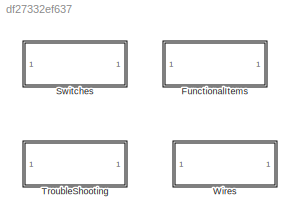
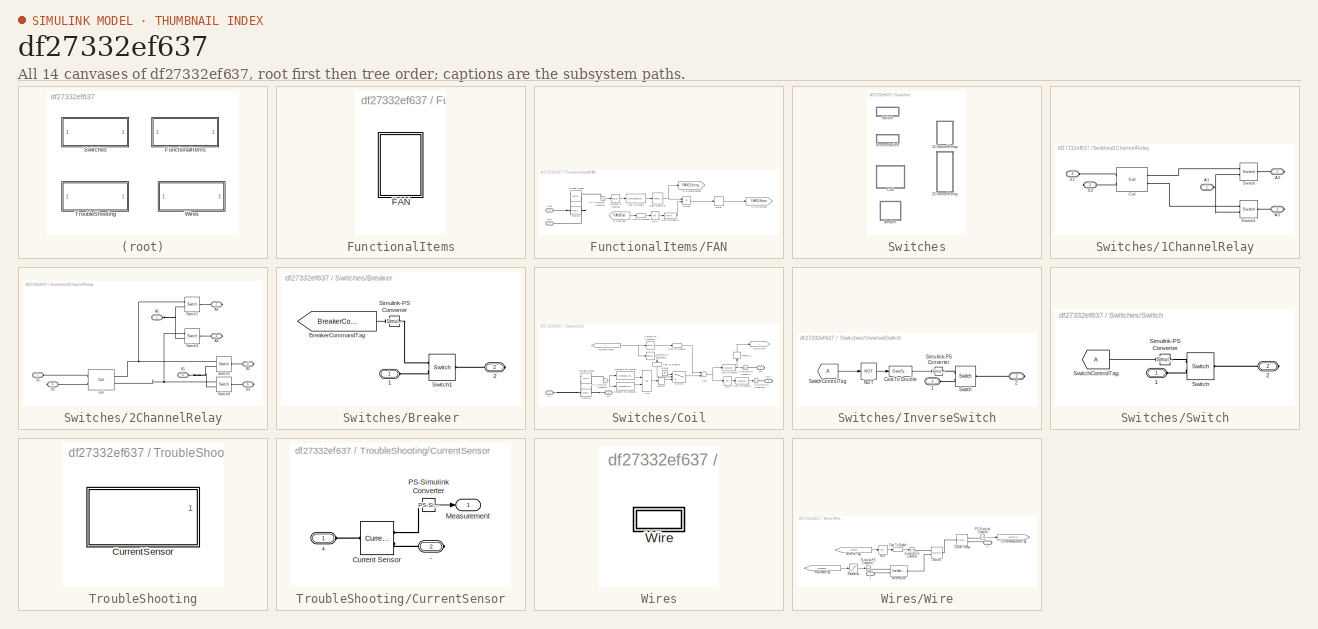
[diagram: thumbnail index - all 14 canvases of the model, root first then tree order]
MODEL slx_df27332ef637
KIND library
CONFIG AbsTol = auto
CONFIG EnableMultiTasking = off
CONFIG FixedStep = auto
CONFIG MaxStep = auto
CONFIG MinStep = auto
CONFIG RelTol = 1e-3
CONFIG SampleTimeConstraint = Unconstrained
CONFIG Solver = VariableStepAuto
CONFIG SolverName = VariableStepAuto
CONFIG StartTime = 0.0
CONFIG StopTime = 10.0
BLOCK [SubSystem] FunctionalItems
  Ports = []
  RequestExecContextInheritance = off
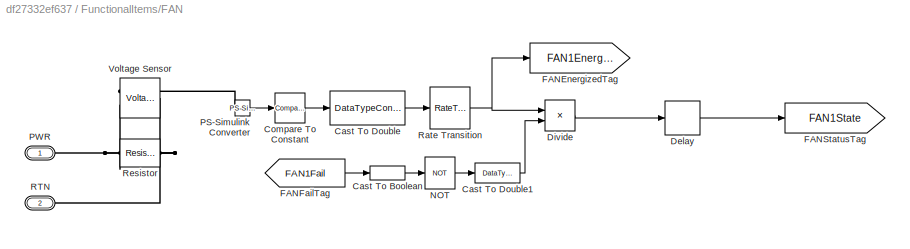
BLOCK [SubSystem] FunctionalItems/FAN
  AttributesFormatString = FAN%<FANNumber>
  Ports = [0, 0, 0, 0, 0, 2]
  RequestExecContextInheritance = off
BLOCK [DataTypeConversion] FunctionalItems/FAN/Cast To Boolean
  OutDataTypeStr = boolean
  RndMeth = Floor
  SaturateOnIntegerOverflow = off
BLOCK [DataTypeConversion] FunctionalItems/FAN/Cast To Double
  OutDataTypeStr = double
  RndMeth = Floor
  SaturateOnIntegerOverflow = off
BLOCK [DataTypeConversion] FunctionalItems/FAN/Cast To Double1
  OutDataTypeStr = double
  RndMeth = Floor
  SaturateOnIntegerOverflow = off
BLOCK [Reference] FunctionalItems/FAN/Compare To Constant  REF=simulink/Logic and Bit
Operations/Compare
To Constant
  Ports = [1, 1]
  SourceBlock = simulink/Logic and Bit\nOperations/Compare\nTo Constant
  SourceProductBaseCode = SL
  SourceProductName = Simulink
  SourceType = Compare To Constant
BLOCK [Delay] FunctionalItems/FAN/Delay
  DelayLength = 1
  InitialCondition = 0
  InputPortMap = u0
  Ports = [1, 1]
BLOCK [Product] FunctionalItems/FAN/Divide
  InputSameDT = off
  Inputs = **
  OutDataTypeStr = Inherit: Inherit via internal rule
  Ports = [2, 1]
  RndMeth = Floor
  SaturateOnIntegerOverflow = off
BLOCK [Goto] FunctionalItems/FAN/FANEnergizedTag
  GotoTag = FAN1Energized
  TagVisibility = global
BLOCK [From] FunctionalItems/FAN/FANFailTag
  GotoTag = FAN1Fail
BLOCK [Goto] FunctionalItems/FAN/FANStatusTag
  GotoTag = FAN1State
  TagVisibility = global
BLOCK [Logic] FunctionalItems/FAN/NOT
  AllPortsSameDT = off
  IconShape = distinctive
  Operator = NOT
  OutDataTypeStr = boolean
  Ports = [1, 1]
BLOCK [Reference] FunctionalItems/FAN/PS-Simulink Converter  REF=nesl_utility/PS-Simulink
Converter
  Ports = [0, 1, 0, 0, 0, 1]
  SourceBlock = nesl_utility/PS-Simulink\nConverter
  SourceProductBaseCode = SS
  SourceProductName = Simscape
  SourceType = PS-Simulink\nConverter
BLOCK [PMIOPort] FunctionalItems/FAN/PWR
  Side = Left
BLOCK [PMIOPort] FunctionalItems/FAN/RTN
  Port = 2
  Side = Left
BLOCK [RateTransition] FunctionalItems/FAN/Rate Transition
BLOCK [Reference] FunctionalItems/FAN/Resistor  REF=fl_lib/Electrical/Electrical Elements/Resistor
  Ports = [0, 0, 0, 0, 0, 1, 1]
  SourceBlock = fl_lib/Electrical/Electrical Elements/Resistor
  SourceProductBaseCode = SS
  SourceProductName = Simscape
  SourceType = Resistor
BLOCK [Reference] FunctionalItems/FAN/Voltage Sensor  REF=fl_lib/Electrical/Electrical Sensors/Voltage Sensor
  Ports = [0, 0, 0, 0, 0, 1, 2]
  SourceBlock = fl_lib/Electrical/Electrical Sensors/Voltage Sensor
  SourceProductBaseCode = SS
  SourceProductName = Simscape
  SourceType = Voltage Sensor
BLOCK [SubSystem] Switches
  Ports = []
  RequestExecContextInheritance = off
BLOCK [SubSystem] Switches/1ChannelRelay
  Ports = [0, 0, 0, 0, 0, 2, 3]
  RequestExecContextInheritance = off
BLOCK [PMIOPort] Switches/1ChannelRelay/A1
  Side = Left
BLOCK [PMIOPort] Switches/1ChannelRelay/A2
  Port = 2
  Side = Right
BLOCK [PMIOPort] Switches/1ChannelRelay/A3
  Port = 3
  Side = Right
BLOCK [Reference] Switches/1ChannelRelay/Coil  REF=$bdroot/Switches/Coil
  Ports = [0, 0, 0, 0, 0, 2, 2]
  SourceBlock = $bdroot/Switches/Coil
BLOCK [Reference] Switches/1ChannelRelay/Switch  REF=fl_lib/Electrical/Electrical Elements/Switch
  Ports = [0, 0, 0, 0, 0, 1, 2]
  SourceBlock = fl_lib/Electrical/Electrical Elements/Switch
  SourceProductBaseCode = SS
  SourceProductName = Simscape
  SourceType = Switch
BLOCK [Reference] Switches/1ChannelRelay/Switch1  REF=fl_lib/Electrical/Electrical Elements/Switch
  Ports = [0, 0, 0, 0, 0, 1, 2]
  SourceBlock = fl_lib/Electrical/Electrical Elements/Switch
  SourceProductBaseCode = SS
  SourceProductName = Simscape
  SourceType = Switch
BLOCK [PMIOPort] Switches/1ChannelRelay/X1
  Port = 4
  Side = Left
BLOCK [PMIOPort] Switches/1ChannelRelay/X2
  Port = 5
  Side = Right
BLOCK [SubSystem] Switches/2ChannelRelay
  Ports = [0, 0, 0, 0, 0, 3, 5]
  RequestExecContextInheritance = off
BLOCK [PMIOPort] Switches/2ChannelRelay/A1
  Side = Left
BLOCK [PMIOPort] Switches/2ChannelRelay/A2
  Port = 2
  Side = Right
BLOCK [PMIOPort] Switches/2ChannelRelay/A3
  Port = 3
  Side = Right
BLOCK [PMIOPort] Switches/2ChannelRelay/B1
  Port = 4
  Side = Left
BLOCK [PMIOPort] Switches/2ChannelRelay/B2
  Port = 5
  Side = Right
BLOCK [PMIOPort] Switches/2ChannelRelay/B3
  Port = 6
  Side = Right
BLOCK [Reference] Switches/2ChannelRelay/Coil  REF=$bdroot/Switches/Coil
  Ports = [0, 0, 0, 0, 0, 2, 2]
  SourceBlock = $bdroot/Switches/Coil
BLOCK [Reference] Switches/2ChannelRelay/Switch1  REF=fl_lib/Electrical/Electrical Elements/Switch
  Ports = [0, 0, 0, 0, 0, 1, 2]
  SourceBlock = fl_lib/Electrical/Electrical Elements/Switch
  SourceProductBaseCode = SS
  SourceProductName = Simscape
  SourceType = Switch
BLOCK [Reference] Switches/2ChannelRelay/Switch2  REF=fl_lib/Electrical/Electrical Elements/Switch
  Ports = [0, 0, 0, 0, 0, 1, 2]
  SourceBlock = fl_lib/Electrical/Electrical Elements/Switch
  SourceProductBaseCode = SS
  SourceProductName = Simscape
  SourceType = Switch
BLOCK [Reference] Switches/2ChannelRelay/Switch3  REF=fl_lib/Electrical/Electrical Elements/Switch
  Ports = [0, 0, 0, 0, 0, 1, 2]
  SourceBlock = fl_lib/Electrical/Electrical Elements/Switch
  SourceProductBaseCode = SS
  SourceProductName = Simscape
  SourceType = Switch
BLOCK [Reference] Switches/2ChannelRelay/Switch4  REF=fl_lib/Electrical/Electrical Elements/Switch
  Ports = [0, 0, 0, 0, 0, 1, 2]
  SourceBlock = fl_lib/Electrical/Electrical Elements/Switch
  SourceProductBaseCode = SS
  SourceProductName = Simscape
  SourceType = Switch
BLOCK [PMIOPort] Switches/2ChannelRelay/X1
  Port = 7
  Side = Left
BLOCK [PMIOPort] Switches/2ChannelRelay/X2
  Port = 8
  Side = Right
BLOCK [SubSystem] Switches/Breaker
  Ports = [0, 0, 0, 0, 0, 1, 1]
  RequestExecContextInheritance = off
BLOCK [PMIOPort] Switches/Breaker/1
  Side = Left
BLOCK [PMIOPort] Switches/Breaker/2
  Port = 2
  Side = Right
BLOCK [From] Switches/Breaker/BreakerCommandTag
  GotoTag = BreakerCommand
BLOCK [Reference] Switches/Breaker/Simulink-PS Converter  REF=nesl_utility/Simulink-PS
Converter
  Ports = [1, 0, 0, 0, 0, 0, 1]
  SourceBlock = nesl_utility/Simulink-PS\nConverter
  SourceProductBaseCode = SS
  SourceProductName = Simscape
  SourceType = Simulink-PS\nConverter
BLOCK [Reference] Switches/Breaker/Switch1  REF=fl_lib/Electrical/Electrical Elements/Switch
  Ports = [0, 0, 0, 0, 0, 1, 2]
  SourceBlock = fl_lib/Electrical/Electrical Elements/Switch
  SourceProductBaseCode = SS
  SourceProductName = Simscape
  SourceType = Switch
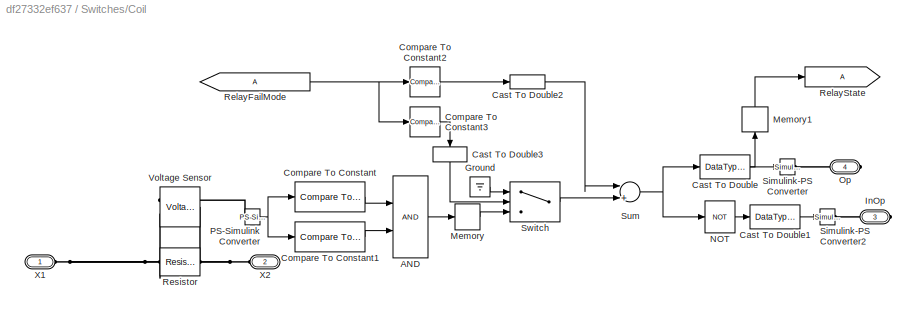
BLOCK [SubSystem] Switches/Coil
  Ports = [0, 0, 0, 0, 0, 2, 2]
  RequestExecContextInheritance = off
BLOCK [Logic] Switches/Coil/AND
  AllPortsSameDT = off
  IconShape = distinctive
  OutDataTypeStr = boolean
  Ports = [2, 1]
BLOCK [DataTypeConversion] Switches/Coil/Cast To Double
  OutDataTypeStr = double
  RndMeth = Floor
  SaturateOnIntegerOverflow = off
BLOCK [DataTypeConversion] Switches/Coil/Cast To Double1
  OutDataTypeStr = double
  RndMeth = Floor
  SaturateOnIntegerOverflow = off
BLOCK [DataTypeConversion] Switches/Coil/Cast To Double2
  OutDataTypeStr = double
  RndMeth = Floor
  SaturateOnIntegerOverflow = off
BLOCK [DataTypeConversion] Switches/Coil/Cast To Double3
  OutDataTypeStr = double
  RndMeth = Floor
  SaturateOnIntegerOverflow = off
BLOCK [Reference] Switches/Coil/Compare To Constant  REF=simulink/Logic and Bit
Operations/Compare
To Constant
  Ports = [1, 1]
  SourceBlock = simulink/Logic and Bit\nOperations/Compare\nTo Constant
  SourceProductBaseCode = SL
  SourceProductName = Simulink
  SourceType = Compare To Constant
BLOCK [Reference] Switches/Coil/Compare To Constant1  REF=simulink/Logic and Bit
Operations/Compare
To Constant
  Ports = [1, 1]
  SourceBlock = simulink/Logic and Bit\nOperations/Compare\nTo Constant
  SourceProductBaseCode = SL
  SourceProductName = Simulink
  SourceType = Compare To Constant
BLOCK [Reference] Switches/Coil/Compare To Constant2  REF=simulink/Logic and Bit
Operations/Compare
To Constant
  Ports = [1, 1]
  SourceBlock = simulink/Logic and Bit\nOperations/Compare\nTo Constant
  SourceProductBaseCode = SL
  SourceProductName = Simulink
  SourceType = Compare To Constant
BLOCK [Reference] Switches/Coil/Compare To Constant3  REF=simulink/Logic and Bit
Operations/Compare
To Constant
  Ports = [1, 1]
  SourceBlock = simulink/Logic and Bit\nOperations/Compare\nTo Constant
  SourceProductBaseCode = SL
  SourceProductName = Simulink
  SourceType = Compare To Constant
BLOCK [Ground] Switches/Coil/Ground
BLOCK [PMIOPort] Switches/Coil/InOp
  Port = 3
  Side = Right
BLOCK [Memory] Switches/Coil/Memory
BLOCK [Memory] Switches/Coil/Memory1
BLOCK [Logic] Switches/Coil/NOT
  AllPortsSameDT = off
  IconShape = distinctive
  Operator = NOT
  OutDataTypeStr = boolean
  Ports = [1, 1]
BLOCK [PMIOPort] Switches/Coil/Op
  Port = 4
  Side = Right
BLOCK [Reference] Switches/Coil/PS-Simulink Converter  REF=nesl_utility/PS-Simulink
Converter
  Ports = [0, 1, 0, 0, 0, 1]
  SourceBlock = nesl_utility/PS-Simulink\nConverter
  SourceProductBaseCode = SS
  SourceProductName = Simscape
  SourceType = PS-Simulink\nConverter
BLOCK [From] Switches/Coil/RelayFailMode
  TagVisibility = global
BLOCK [Goto] Switches/Coil/RelayState
  TagVisibility = global
BLOCK [Reference] Switches/Coil/Resistor  REF=fl_lib/Electrical/Electrical Elements/Resistor
  Ports = [0, 0, 0, 0, 0, 1, 1]
  SourceBlock = fl_lib/Electrical/Electrical Elements/Resistor
  SourceProductBaseCode = SS
  SourceProductName = Simscape
  SourceType = Resistor
BLOCK [Reference] Switches/Coil/Simulink-PS Converter  REF=nesl_utility/Simulink-PS
Converter
  Ports = [1, 0, 0, 0, 0, 0, 1]
  SourceBlock = nesl_utility/Simulink-PS\nConverter
  SourceProductBaseCode = SS
  SourceProductName = Simscape
  SourceType = Simulink-PS\nConverter
BLOCK [Reference] Switches/Coil/Simulink-PS Converter2  REF=nesl_utility/Simulink-PS
Converter
  Ports = [1, 0, 0, 0, 0, 0, 1]
  SourceBlock = nesl_utility/Simulink-PS\nConverter
  SourceProductBaseCode = SS
  SourceProductName = Simscape
  SourceType = Simulink-PS\nConverter
BLOCK [Sum] Switches/Coil/Sum
  InputSameDT = off
  Inputs = |++
  OutDataTypeStr = Inherit: Inherit via internal rule
  Ports = [2, 1]
  SaturateOnIntegerOverflow = off
BLOCK [Switch] Switches/Coil/Switch
  Criteria = u2 > Threshold
  InputSameDT = off
  SaturateOnIntegerOverflow = off
BLOCK [Reference] Switches/Coil/Voltage Sensor  REF=fl_lib/Electrical/Electrical Sensors/Voltage Sensor
  Ports = [0, 0, 0, 0, 0, 1, 2]
  SourceBlock = fl_lib/Electrical/Electrical Sensors/Voltage Sensor
  SourceProductBaseCode = SS
  SourceProductName = Simscape
  SourceType = Voltage Sensor
BLOCK [PMIOPort] Switches/Coil/X1
  Side = Left
BLOCK [PMIOPort] Switches/Coil/X2
  Port = 2
  Side = Left
BLOCK [SubSystem] Switches/InverseSwitch
  AttributesFormatString = Inverse %<SwitchTag>
  Ports = [0, 0, 0, 0, 0, 1, 1]
  RequestExecContextInheritance = off
BLOCK [PMIOPort] Switches/InverseSwitch/1
  Side = Left
BLOCK [PMIOPort] Switches/InverseSwitch/2
  Port = 2
  Side = Right
BLOCK [DataTypeConversion] Switches/InverseSwitch/Cast To Double
  OutDataTypeStr = double
  RndMeth = Floor
  SaturateOnIntegerOverflow = off
BLOCK [Logic] Switches/InverseSwitch/NOT
  AllPortsSameDT = off
  IconShape = distinctive
  Operator = NOT
  OutDataTypeStr = boolean
  Ports = [1, 1]
BLOCK [Reference] Switches/InverseSwitch/Simulink-PS Converter  REF=nesl_utility/Simulink-PS
Converter
  Ports = [1, 0, 0, 0, 0, 0, 1]
  SourceBlock = nesl_utility/Simulink-PS\nConverter
  SourceProductBaseCode = SS
  SourceProductName = Simscape
  SourceType = Simulink-PS\nConverter
BLOCK [Reference] Switches/InverseSwitch/Switch  REF=fl_lib/Electrical/Electrical Elements/Switch
  Ports = [0, 0, 0, 0, 0, 1, 2]
  SourceBlock = fl_lib/Electrical/Electrical Elements/Switch
  SourceProductBaseCode = SS
  SourceProductName = Simscape
  SourceType = Switch
BLOCK [From] Switches/InverseSwitch/SwitchControlTag
  TagVisibility = global
BLOCK [SubSystem] Switches/Switch
  AttributesFormatString = %<SwitchTag>
  Ports = [0, 0, 0, 0, 0, 1, 1]
  RequestExecContextInheritance = off
BLOCK [PMIOPort] Switches/Switch/1
  Side = Left
BLOCK [PMIOPort] Switches/Switch/2
  Port = 2
  Side = Right
BLOCK [Reference] Switches/Switch/Simulink-PS Converter  REF=nesl_utility/Simulink-PS
Converter
  Ports = [1, 0, 0, 0, 0, 0, 1]
  SourceBlock = nesl_utility/Simulink-PS\nConverter
  SourceProductBaseCode = SS
  SourceProductName = Simscape
  SourceType = Simulink-PS\nConverter
BLOCK [Reference] Switches/Switch/Switch  REF=fl_lib/Electrical/Electrical Elements/Switch
  Ports = [0, 0, 0, 0, 0, 1, 2]
  SourceBlock = fl_lib/Electrical/Electrical Elements/Switch
  SourceProductBaseCode = SS
  SourceProductName = Simscape
  SourceType = Switch
BLOCK [From] Switches/Switch/SwitchControlTag
  TagVisibility = global
BLOCK [SubSystem] TroubleShooting
  Ports = []
  RequestExecContextInheritance = off
BLOCK [SubSystem] TroubleShooting/CurrentSensor
  Ports = [0, 1, 0, 0, 0, 1, 1]
  RequestExecContextInheritance = off
BLOCK [PMIOPort] TroubleShooting/CurrentSensor/+
  Side = Left
BLOCK [PMIOPort] TroubleShooting/CurrentSensor/-
  Port = 2
  Side = Right
BLOCK [Reference] TroubleShooting/CurrentSensor/Current Sensor  REF=fl_lib/Electrical/Electrical Sensors/Current Sensor
  Ports = [0, 0, 0, 0, 0, 1, 2]
  SourceBlock = fl_lib/Electrical/Electrical Sensors/Current Sensor
  SourceProductBaseCode = SS
  SourceProductName = Simscape
  SourceType = Current Sensor
BLOCK [Outport] TroubleShooting/CurrentSensor/Measurement
  IconDisplay = Port number
  VectorParamsAs1DForOutWhenUnconnected = off
BLOCK [Reference] TroubleShooting/CurrentSensor/PS-Simulink Converter  REF=nesl_utility/PS-Simulink
Converter
  Ports = [0, 1, 0, 0, 0, 1]
  SourceBlock = nesl_utility/PS-Simulink\nConverter
  SourceProductBaseCode = SS
  SourceProductName = Simscape
  SourceType = PS-Simulink\nConverter
BLOCK [SubSystem] Wires
  Ports = []
  RequestExecContextInheritance = off
BLOCK [SubSystem] Wires/Wire
  MoveFcn = WireNumeration(gcbh)\nset_param(gcbh,'ResistanceTag',strcat(get_param(gcbh,'Name'),'Resistor'))\nset_param(gcbh,'CurrentTag',strcat(get_param(gcbh,'Name'),'Current'))\nset_param(gcbh,'FailTag',strcat(get_param(gcbh,'Name'),'Fail'))
  Ports = [0, 0, 0, 0, 0, 1, 1]
  RequestExecContextInheritance = off
BLOCK [PMIOPort] Wires/Wire/1
  Side = Left
BLOCK [PMIOPort] Wires/Wire/2
  Port = 2
  Side = Right
BLOCK [DataTypeConversion] Wires/Wire/Cast To Double
  OutDataTypeStr = double
  RndMeth = Floor
  SaturateOnIntegerOverflow = off
BLOCK [Reference] Wires/Wire/Current Sensor  REF=fl_lib/Electrical/Electrical Sensors/Current Sensor
  Ports = [0, 0, 0, 0, 0, 1, 2]
  SourceBlock = fl_lib/Electrical/Electrical Sensors/Current Sensor
  SourceProductBaseCode = SS
  SourceProductName = Simscape
  SourceType = Current Sensor
BLOCK [Goto] Wires/Wire/CurrentMeasurementTag
  GotoTag = WireCurrent
  TagVisibility = global
BLOCK [Logic] Wires/Wire/NOT
  AllPortsSameDT = off
  IconShape = distinctive
  Operator = NOT
  OutDataTypeStr = boolean
  Ports = [1, 1]
BLOCK [Reference] Wires/Wire/PS-Simulink Converter  REF=nesl_utility/PS-Simulink
Converter
  Ports = [0, 1, 0, 0, 0, 1]
  SourceBlock = nesl_utility/PS-Simulink\nConverter
  SourceProductBaseCode = SS
  SourceProductName = Simscape
  SourceType = PS-Simulink\nConverter
BLOCK [From] Wires/Wire/ResistanceTag
  GotoTag = WireResistor
BLOCK [Saturate] Wires/Wire/Saturation
  InputPortMap = u0
  LowerLimit = 1e-3
  Ports = [1, 1]
  UpperLimit = 1e6
BLOCK [Reference] Wires/Wire/Simulink-PS Converter  REF=nesl_utility/Simulink-PS
Converter
  Ports = [1, 0, 0, 0, 0, 0, 1]
  SourceBlock = nesl_utility/Simulink-PS\nConverter
  SourceProductBaseCode = SS
  SourceProductName = Simscape
  SourceType = Simulink-PS\nConverter
BLOCK [Reference] Wires/Wire/Simulink-PS Converter1  REF=nesl_utility/Simulink-PS
Converter
  Ports = [1, 0, 0, 0, 0, 0, 1]
  SourceBlock = nesl_utility/Simulink-PS\nConverter
  SourceProductBaseCode = SS
  SourceProductName = Simscape
  SourceType = Simulink-PS\nConverter
BLOCK [Reference] Wires/Wire/Switch  REF=fl_lib/Electrical/Electrical Elements/Switch
  Ports = [0, 0, 0, 0, 0, 1, 2]
  SourceBlock = fl_lib/Electrical/Electrical Elements/Switch
  SourceProductBaseCode = SS
  SourceProductName = Simscape
  SourceType = Switch
BLOCK [From] Wires/Wire/WireFailTag
  GotoTag = WireFail
BLOCK [Reference] Wires/Wire/WireResistor  REF=fl_lib/Electrical/Electrical Elements/Variable Resistor
  Ports = [0, 0, 0, 0, 0, 2, 1]
  SourceBlock = fl_lib/Electrical/Electrical Elements/Variable Resistor
  SourceProductBaseCode = SS
  SourceProductName = Simscape
  SourceType = Variable Resistor
LINE FunctionalItems/FAN/Cast To Boolean:1 -> FunctionalItems/FAN/NOT:1
LINE FunctionalItems/FAN/Cast To Double1:1 -> FunctionalItems/FAN/Divide:2
LINE FunctionalItems/FAN/Cast To Double:1 -> FunctionalItems/FAN/Rate Transition:1
LINE FunctionalItems/FAN/Compare To Constant:1 -> FunctionalItems/FAN/Cast To Double:1
LINE FunctionalItems/FAN/Delay:1 -> FunctionalItems/FAN/FANStatusTag:1
LINE FunctionalItems/FAN/Divide:1 -> FunctionalItems/FAN/Delay:1
LINE FunctionalItems/FAN/FANFailTag:1 -> FunctionalItems/FAN/Cast To Boolean:1
LINE FunctionalItems/FAN/NOT:1 -> FunctionalItems/FAN/Cast To Double1:1
LINE FunctionalItems/FAN/PS-Simulink Converter:1 -> FunctionalItems/FAN/Compare To Constant:1
NET FunctionalItems/FAN/Rate Transition:1 -> FunctionalItems/FAN/Divide:1, FunctionalItems/FAN/FANEnergizedTag:1
LINE Switches/Breaker/BreakerCommandTag:1 -> Switches/Breaker/Simulink-PS Converter:1
LINE Switches/Coil/AND:1 -> Switches/Coil/Memory:1
LINE Switches/Coil/Cast To Double1:1 -> Switches/Coil/Simulink-PS Converter2:1
LINE Switches/Coil/Cast To Double2:1 -> Switches/Coil/Sum:1
LINE Switches/Coil/Cast To Double3:1 -> Switches/Coil/Switch:2
NET Switches/Coil/Cast To Double:1 -> Switches/Coil/Memory1:1, Switches/Coil/Simulink-PS Converter:1
LINE Switches/Coil/Compare To Constant1:1 -> Switches/Coil/AND:2
LINE Switches/Coil/Compare To Constant2:1 -> Switches/Coil/Cast To Double2:1
LINE Switches/Coil/Compare To Constant3:1 -> Switches/Coil/Cast To Double3:1
LINE Switches/Coil/Compare To Constant:1 -> Switches/Coil/AND:1
LINE Switches/Coil/Ground:1 -> Switches/Coil/Switch:1
LINE Switches/Coil/Memory1:1 -> Switches/Coil/RelayState:1
LINE Switches/Coil/Memory:1 -> Switches/Coil/Switch:3
LINE Switches/Coil/NOT:1 -> Switches/Coil/Cast To Double1:1
NET Switches/Coil/PS-Simulink Converter:1 -> Switches/Coil/Compare To Constant1:1, Switches/Coil/Compare To Constant:1
NET Switches/Coil/RelayFailMode:1 -> Switches/Coil/Compare To Constant2:1, Switches/Coil/Compare To Constant3:1
NET Switches/Coil/Sum:1 -> Switches/Coil/Cast To Double:1, Switches/Coil/NOT:1
LINE Switches/Coil/Switch:1 -> Switches/Coil/Sum:2
LINE Switches/InverseSwitch/Cast To Double:1 -> Switches/InverseSwitch/Simulink-PS Converter:1
LINE Switches/InverseSwitch/NOT:1 -> Switches/InverseSwitch/Cast To Double:1
LINE Switches/InverseSwitch/SwitchControlTag:1 -> Switches/InverseSwitch/NOT:1
LINE Switches/Switch/SwitchControlTag:1 -> Switches/Switch/Simulink-PS Converter:1
LINE TroubleShooting/CurrentSensor/PS-Simulink Converter:1 -> TroubleShooting/CurrentSensor/Measurement:1
LINE Wires/Wire/Cast To Double:1 -> Wires/Wire/Simulink-PS Converter:1
LINE Wires/Wire/NOT:1 -> Wires/Wire/Cast To Double:1
LINE Wires/Wire/PS-Simulink Converter:1 -> Wires/Wire/CurrentMeasurementTag:1
LINE Wires/Wire/ResistanceTag:1 -> Wires/Wire/Saturation:1
LINE Wires/Wire/Saturation:1 -> Wires/Wire/Simulink-PS Converter1:1
LINE Wires/Wire/WireFailTag:1 -> Wires/Wire/NOT:1
PLINE FunctionalItems/FAN/PS-Simulink Converter:LConn1 -- FunctionalItems/FAN/Voltage Sensor:RConn1
PNET net1: FunctionalItems/FAN/PWR:RConn1 -- FunctionalItems/FAN/Resistor:LConn1 -- FunctionalItems/FAN/Voltage Sensor:LConn1
PNET net2: FunctionalItems/FAN/RTN:RConn1 -- FunctionalItems/FAN/Resistor:RConn1 -- FunctionalItems/FAN/Voltage Sensor:RConn2
PNET net3: Switches/1ChannelRelay/A1:RConn1 -- Switches/1ChannelRelay/Switch1:RConn2 -- Switches/1ChannelRelay/Switch:RConn2
PLINE Switches/1ChannelRelay/A2:RConn1 -- Switches/1ChannelRelay/Switch:LConn1
PLINE Switches/1ChannelRelay/A3:RConn1 -- Switches/1ChannelRelay/Switch1:LConn1
PLINE Switches/1ChannelRelay/Coil:LConn1 -- Switches/1ChannelRelay/X1:RConn1
PLINE Switches/1ChannelRelay/Coil:LConn2 -- Switches/1ChannelRelay/X2:RConn1
PLINE Switches/1ChannelRelay/Coil:RConn1 -- Switches/1ChannelRelay/Switch:RConn1
PLINE Switches/1ChannelRelay/Coil:RConn2 -- Switches/1ChannelRelay/Switch1:RConn1
PNET net4: Switches/2ChannelRelay/A1:RConn1 -- Switches/2ChannelRelay/Switch1:RConn2 -- Switches/2ChannelRelay/Switch3:RConn2
PLINE Switches/2ChannelRelay/A2:RConn1 -- Switches/2ChannelRelay/Switch1:LConn1
PLINE Switches/2ChannelRelay/A3:RConn1 -- Switches/2ChannelRelay/Switch3:LConn1
PNET net5: Switches/2ChannelRelay/B1:RConn1 -- Switches/2ChannelRelay/Switch2:RConn2 -- Switches/2ChannelRelay/Switch4:RConn2
PLINE Switches/2ChannelRelay/B2:RConn1 -- Switches/2ChannelRelay/Switch2:LConn1
PLINE Switches/2ChannelRelay/B3:RConn1 -- Switches/2ChannelRelay/Switch4:LConn1
PLINE Switches/2ChannelRelay/Coil:LConn1 -- Switches/2ChannelRelay/X1:RConn1
PLINE Switches/2ChannelRelay/Coil:LConn2 -- Switches/2ChannelRelay/X2:RConn1
PNET net6: Switches/2ChannelRelay/Coil:RConn1 -- Switches/2ChannelRelay/Switch1:RConn1 -- Switches/2ChannelRelay/Switch2:RConn1
PNET net7: Switches/2ChannelRelay/Coil:RConn2 -- Switches/2ChannelRelay/Switch3:RConn1 -- Switches/2ChannelRelay/Switch4:RConn1
PLINE Switches/Breaker/1:RConn1 -- Switches/Breaker/Switch1:RConn2
PLINE Switches/Breaker/2:RConn1 -- Switches/Breaker/Switch1:LConn1
PLINE Switches/Breaker/Simulink-PS Converter:RConn1 -- Switches/Breaker/Switch1:RConn1
PLINE Switches/Coil/InOp:RConn1 -- Switches/Coil/Simulink-PS Converter2:RConn1
PLINE Switches/Coil/Op:RConn1 -- Switches/Coil/Simulink-PS Converter:RConn1
PLINE Switches/Coil/PS-Simulink Converter:LConn1 -- Switches/Coil/Voltage Sensor:RConn1
PNET net8: Switches/Coil/Resistor:LConn1 -- Switches/Coil/Voltage Sensor:LConn1 -- Switches/Coil/X1:RConn1
PNET net9: Switches/Coil/Resistor:RConn1 -- Switches/Coil/Voltage Sensor:RConn2 -- Switches/Coil/X2:RConn1
PLINE Switches/InverseSwitch/1:RConn1 -- Switches/InverseSwitch/Switch:RConn2
PLINE Switches/InverseSwitch/2:RConn1 -- Switches/InverseSwitch/Switch:LConn1
PLINE Switches/InverseSwitch/Simulink-PS Converter:RConn1 -- Switches/InverseSwitch/Switch:RConn1
PLINE Switches/Switch/1:RConn1 -- Switches/Switch/Switch:RConn2
PLINE Switches/Switch/2:RConn1 -- Switches/Switch/Switch:LConn1
PLINE Switches/Switch/Simulink-PS Converter:RConn1 -- Switches/Switch/Switch:RConn1
PLINE TroubleShooting/CurrentSensor/+:RConn1 -- TroubleShooting/CurrentSensor/Current Sensor:LConn1
PLINE TroubleShooting/CurrentSensor/-:RConn1 -- TroubleShooting/CurrentSensor/Current Sensor:RConn2
PLINE TroubleShooting/CurrentSensor/Current Sensor:RConn1 -- TroubleShooting/CurrentSensor/PS-Simulink Converter:LConn1
PLINE Wires/Wire/1:RConn1 -- Wires/Wire/WireResistor:LConn2
PLINE Wires/Wire/2:RConn1 -- Wires/Wire/Current Sensor:RConn2
PLINE Wires/Wire/Current Sensor:LConn1 -- Wires/Wire/Switch:LConn1
PLINE Wires/Wire/Current Sensor:RConn1 -- Wires/Wire/PS-Simulink Converter:LConn1
PLINE Wires/Wire/Simulink-PS Converter1:RConn1 -- Wires/Wire/WireResistor:LConn1
PLINE Wires/Wire/Simulink-PS Converter:RConn1 -- Wires/Wire/Switch:RConn1
PLINE Wires/Wire/Switch:RConn2 -- Wires/Wire/WireResistor:RConn1
note: NET lines group one-source signal fan-out (src -> all destinations, sorted); 1:1 wires keep LINE; PNET lines group multi-terminal physical nets as a canonical sorted terminal list (undirected conserving connections); 2-terminal nets keep the pairwise PLINE form
